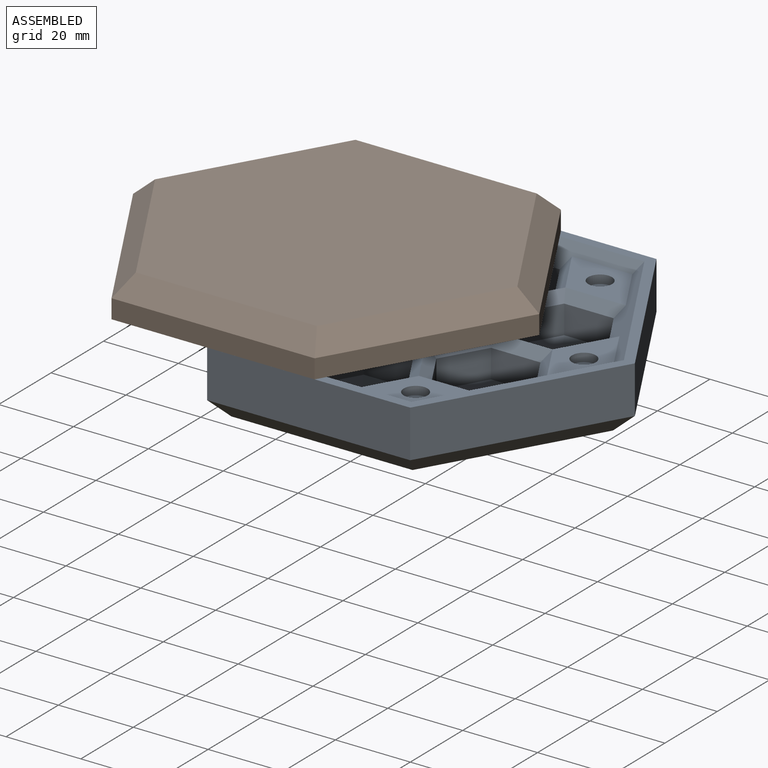
[diagram: assembled view]
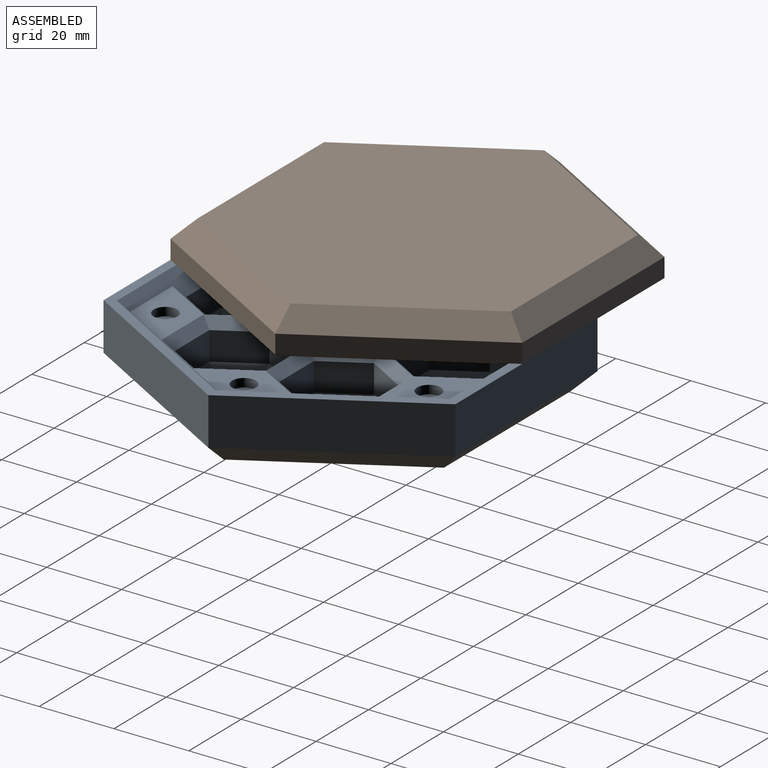
[diagram: assembled view, second angle]
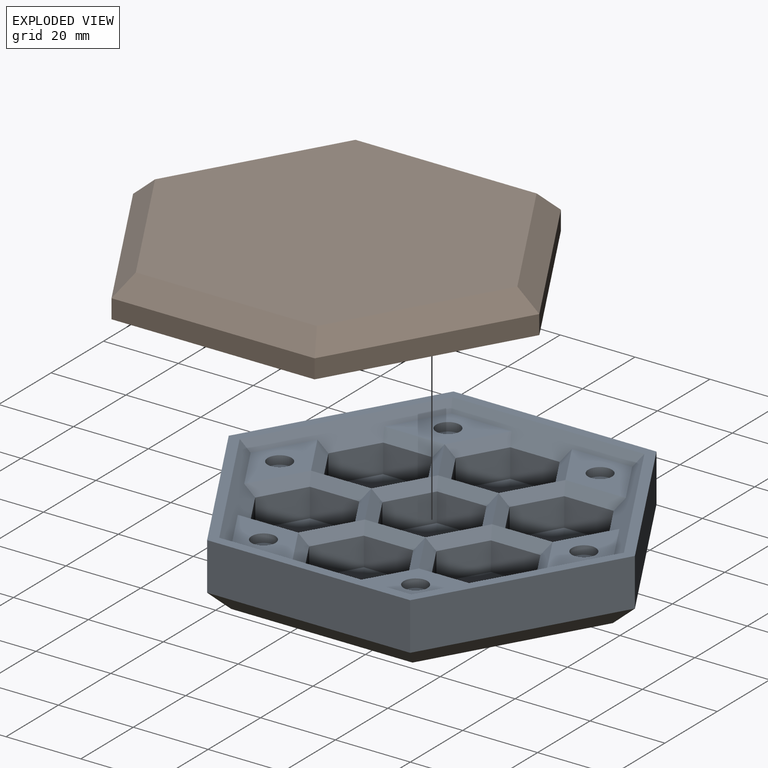
[diagram: exploded view]
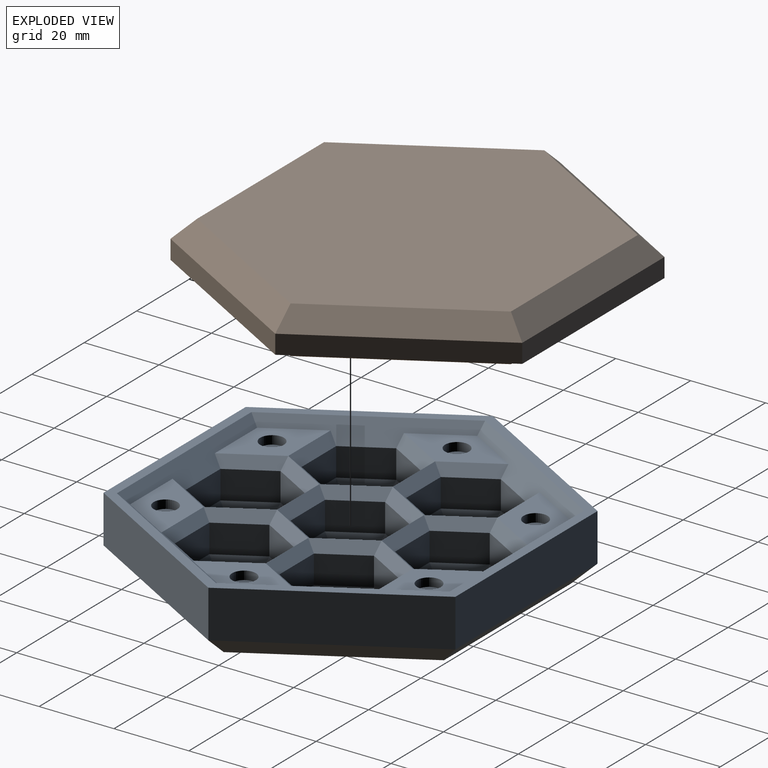
[diagram: exploded view, second angle]
ASSEMBLY  parts=2 mates=2
PART A: 165 faces, bbox 108.5x94x17.8 mm
  f0: plane 27.94x16.13mm, normal (0,0,1), area 193.7mm2, adj f94,f100,f101,f104,f115
  f1: plane 24.2x13.97mm, normal (0,0,1), area 193.7mm2, adj f83,f92,f93,f100,f113
  f2: plane 24.2x13.97mm, normal (0,0,1), area 193.7mm2, adj f81,f82,f91,f92,f111
  f3: plane 27.94x16.13mm, normal (0,0,1), area 193.7mm2, adj f80,f90,f91,f99,f109
  f4: plane 24.2x13.97mm, normal (0,0,1), area 193.7mm2, adj f89,f98,f99,f103,f107
  f5: plane 24.2x13.97mm, normal (0,0,1), area 193.7mm2, adj f97,f102,f103,f104,f105
  f6: plane 11.43x7.62mm, normal (-0.87,-0.5,0), area 100.6mm2, adj f7,f11,f76,f152
  f7: plane 13.2x7.62mm, normal (0,-1,0), area 100.6mm2, adj f6,f8,f69,f151
  f8: plane 11.43x7.62mm, normal (0.87,-0.5,0), area 100.6mm2, adj f7,f9,f65,f149
  f9: plane 11.43x7.62mm, normal (0.87,0.5,0), area 100.6mm2, adj f8,f10,f63,f147
  f10: plane 13.2x7.62mm, normal (0,1,0), area 100.6mm2, adj f9,f11,f64,f148
  f11: plane 11.43x7.62mm, normal (-0.87,0.5,0), area 100.6mm2, adj f6,f10,f68,f150
  f12: plane 20.53x17.78mm, normal (0,0,1), area 273.8mm2, adj f147,f148,f149,f150,f151,f152
  f13: plane 13.2x7.62mm, normal (0,1,0), area 100.6mm2, adj f14,f18,f95,f139
  f14: plane 11.43x7.62mm, normal (-0.87,0.5,0), area 100.6mm2, adj f13,f15,f101,f137
  f15: plane 11.43x7.62mm, normal (-0.87,-0.5,0), area 100.6mm2, adj f14,f16,f104,f135
  f16: plane 13.2x7.62mm, normal (0,-1,0), area 100.6mm2, adj f15,f17,f102,f136
  f17: plane 11.43x7.62mm, normal (0.87,-0.5,0), area 100.6mm2, adj f16,f18,f96,f138
  f18: plane 11.43x7.62mm, normal (0.87,0.5,0), area 100.6mm2, adj f13,f17,f86,f140
  f19: plane 20.53x17.78mm, normal (0,0,1), area 273.8mm2, adj f135,f136,f137,f138,f139,f140
  f20: plane 11.43x7.62mm, normal (0.87,0.5,0), area 100.6mm2, adj f21,f25,f84,f133
  f21: plane 13.2x7.62mm, normal (0,1,0), area 100.6mm2, adj f20,f22,f93,f131
  f22: plane 11.43x7.62mm, normal (-0.87,0.5,0), area 100.6mm2, adj f21,f23,f100,f129
  f23: plane 11.43x7.62mm, normal (-0.87,-0.5,0), area 100.6mm2, adj f22,f24,f94,f130
  f24: plane 13.2x7.62mm, normal (0,-1,0), area 100.6mm2, adj f23,f25,f85,f132
  f25: plane 11.43x7.62mm, normal (0.87,-0.5,0), area 100.6mm2, adj f20,f24,f75,f134
  f26: plane 20.53x17.78mm, normal (0,0,1), area 273.8mm2, adj f129,f130,f131,f132,f133,f134
  f27: plane 13.2x7.62mm, normal (0,-1,0), area 100.6mm2, adj f28,f32,f71,f163
  f28: plane 11.43x7.62mm, normal (0.87,-0.5,0), area 100.6mm2, adj f27,f29,f80,f161
  f29: plane 11.43x7.62mm, normal (0.87,0.5,0), area 100.6mm2, adj f28,f30,f91,f159
  f30: plane 13.2x7.62mm, normal (0,1,0), area 100.6mm2, adj f29,f31,f81,f160
  f31: plane 11.43x7.62mm, normal (-0.87,0.5,0), area 100.6mm2, adj f30,f32,f72,f162
  f32: plane 11.43x7.62mm, normal (-0.87,-0.5,0), area 100.6mm2, adj f27,f31,f66,f164
  f33: plane 20.53x17.78mm, normal (0,0,1), area 273.8mm2, adj f159,f160,f161,f162,f163,f164
  f34: plane 11.43x7.62mm, normal (0.87,-0.5,0), area 100.6mm2, adj f35,f39,f73,f127
  f35: plane 11.43x7.62mm, normal (0.87,0.5,0), area 100.6mm2, adj f34,f36,f82,f125
  f36: plane 13.2x7.62mm, normal (0,1,0), area 100.6mm2, adj f35,f37,f92,f123
  f37: plane 11.43x7.62mm, normal (-0.87,0.5,0), area 100.6mm2, adj f36,f38,f83,f124
  f38: plane 11.43x7.62mm, normal (-0.87,-0.5,0), area 100.6mm2, adj f37,f39,f74,f126
  f39: plane 13.2x7.62mm, normal (0,-1,0), area 100.6mm2, adj f34,f38,f67,f128
  f40: plane 20.53x17.78mm, normal (0,0,1), area 273.8mm2, adj f123,f124,f125,f126,f127,f128
  f41: plane 11.43x7.62mm, normal (0.87,0.5,0), area 100.6mm2, adj f42,f46,f88,f146
  f42: plane 13.2x7.62mm, normal (0,1,0), area 100.6mm2, adj f41,f43,f77,f145
  f43: plane 11.43x7.62mm, normal (-0.87,0.5,0), area 100.6mm2, adj f42,f44,f87,f143
  f44: plane 11.43x7.62mm, normal (-0.87,-0.5,0), area 100.6mm2, adj f43,f45,f97,f141
  f45: plane 13.2x7.62mm, normal (0,-1,0), area 100.6mm2, adj f44,f46,f103,f142
  f46: plane 11.43x7.62mm, normal (0.87,-0.5,0), area 100.6mm2, adj f41,f45,f98,f144
  f47: plane 20.53x17.78mm, normal (0,0,1), area 273.8mm2, adj f141,f142,f143,f144,f145,f146
  f48: plane 11.43x7.62mm, normal (-0.87,-0.5,0), area 100.6mm2, adj f49,f53,f78,f157
  f49: plane 13.2x7.62mm, normal (0,-1,0), area 100.6mm2, adj f48,f50,f89,f155
  f50: plane 11.43x7.62mm, normal (0.87,-0.5,0), area 100.6mm2, adj f49,f51,f99,f153
  f51: plane 11.43x7.62mm, normal (0.87,0.5,0), area 100.6mm2, adj f50,f52,f90,f154
  f52: plane 13.2x7.62mm, normal (0,1,0), area 100.6mm2, adj f51,f53,f79,f156
  f53: plane 11.43x7.62mm, normal (-0.87,0.5,0), area 100.6mm2, adj f48,f52,f70,f158
  f54: plane 20.53x17.78mm, normal (0,0,1), area 273.8mm2, adj f153,f154,f155,f156,f157,f158
  f55: plane 108.52x93.98mm, normal (0,0,1), area 804.6mm2, adj f57,f58,f59,f60,f61,f62,f91,f92
  f56: plane 96.79x83.82mm, normal (0,0,-1), area 6084.5mm2, adj f117,f118,f119,f120,f121,f122
  f57: plane 46.99x27.13mm, normal (0.87,-0.5,0), area 689.1mm2, adj f55,f58,f62,f120
  f58: plane 54.26x12.7mm, normal (0,-1,0), area 689.1mm2, adj f55,f57,f59,f118
  f59: plane 46.99x27.13mm, normal (-0.87,-0.5,0), area 689.1mm2, adj f55,f58,f60,f117
  f60: plane 46.99x27.13mm, normal (-0.87,0.5,0), area 689.1mm2, adj f55,f59,f61,f119
  f61: plane 54.26x12.7mm, normal (0,1,0), area 689.1mm2, adj f55,f60,f62,f121
  f62: plane 46.99x27.13mm, normal (0.87,0.5,0), area 689.1mm2, adj f55,f57,f61,f122
  f63: plane 13.97x9.53mm, normal (0.61,0.35,0.71), area 52.7mm2, adj f9,f64,f65,f66
  f64: plane 16.13x2.54mm, normal (0,0.71,0.71), area 52.7mm2, adj f10,f63,f67,f68
  f65: plane 13.97x9.53mm, normal (0.61,-0.35,0.71), area 52.7mm2, adj f8,f63,f69,f70
  f66: plane 13.97x9.53mm, normal (-0.61,-0.35,0.71), area 52.7mm2, adj f32,f63,f71,f72
  f67: plane 16.13x2.54mm, normal (0,-0.71,0.71), area 52.7mm2, adj f39,f64,f73,f74
  f68: plane 13.97x9.53mm, normal (-0.61,0.35,0.71), area 52.7mm2, adj f11,f64,f75,f76
  f69: plane 16.13x2.54mm, normal (0,-0.71,0.71), area 52.7mm2, adj f7,f65,f76,f77
  f70: plane 13.97x9.53mm, normal (-0.61,0.35,0.71), area 52.7mm2, adj f53,f65,f78,f79
  f71: plane 16.13x2.54mm, normal (0,-0.71,0.71), area 52.7mm2, adj f27,f66,f79,f80
  f72: plane 13.97x9.53mm, normal (-0.61,0.35,0.71), area 52.7mm2, adj f31,f66,f73,f81
  f73: plane 13.97x9.53mm, normal (0.61,-0.35,0.71), area 52.7mm2, adj f34,f67,f72,f82
  f74: plane 13.97x9.53mm, normal (-0.61,-0.35,0.71), area 52.7mm2, adj f38,f67,f83,f84
  f75: plane 13.97x9.53mm, normal (0.61,-0.35,0.71), area 52.7mm2, adj f25,f68,f84,f85
  f76: plane 13.97x9.53mm, normal (-0.61,-0.35,0.71), area 52.7mm2, adj f6,f68,f69,f86
  f77: plane 16.13x2.54mm, normal (0,0.71,0.71), area 52.7mm2, adj f42,f69,f87,f88
  f78: plane 13.97x9.53mm, normal (-0.61,-0.35,0.71), area 52.7mm2, adj f48,f70,f88,f89
  f79: plane 16.13x2.54mm, normal (0,0.71,0.71), area 52.7mm2, adj f52,f70,f71,f90
  f80: plane 13.97x9.53mm, normal (0.61,-0.35,0.71), area 52.7mm2, adj f3,f28,f71,f91
  f81: plane 16.13x2.54mm, normal (0,0.71,0.71), area 52.7mm2, adj f2,f30,f72,f91
  f82: plane 13.97x9.53mm, normal (0.61,0.35,0.71), area 52.7mm2, adj f2,f35,f73,f92
  f83: plane 13.97x9.53mm, normal (-0.61,0.35,0.71), area 52.7mm2, adj f1,f37,f74,f92
  f84: plane 13.97x9.53mm, normal (0.61,0.35,0.71), area 52.7mm2, adj f20,f74,f75,f93
  f85: plane 16.13x2.54mm, normal (0,-0.71,0.71), area 52.7mm2, adj f24,f75,f94,f95
  f86: plane 13.97x9.53mm, normal (0.61,0.35,0.71), area 52.7mm2, adj f18,f76,f95,f96
  f87: plane 13.97x9.53mm, normal (-0.61,0.35,0.71), area 52.7mm2, adj f43,f77,f96,f97
  f88: plane 13.97x9.53mm, normal (0.61,0.35,0.71), area 52.7mm2, adj f41,f77,f78,f98
  f89: plane 16.13x2.54mm, normal (0,-0.71,0.71), area 52.7mm2, adj f4,f49,f78,f99
  f90: plane 13.97x9.53mm, normal (0.61,0.35,0.71), area 52.7mm2, adj f3,f51,f79,f99
  f91: plane 44.45x27.13mm, normal (0.61,0.35,0.71), area 231.8mm2, adj f2,f3,f29,f55,f80,f81,f92,f99
  f92: plane 51.33x5.08mm, normal (0,0.71,0.71), area 231.8mm2, adj f1,f2,f36,f55,f82,f83,f91,f100
  f93: plane 16.13x2.54mm, normal (0,0.71,0.71), area 52.7mm2, adj f1,f21,f84,f100
  f94: plane 13.97x9.53mm, normal (-0.61,-0.35,0.71), area 52.7mm2, adj f0,f23,f85,f100
  f95: plane 16.13x2.54mm, normal (0,0.71,0.71), area 52.7mm2, adj f13,f85,f86,f101
  f96: plane 13.97x9.53mm, normal (0.61,-0.35,0.71), area 52.7mm2, adj f17,f86,f87,f102
  f97: plane 13.97x9.53mm, normal (-0.61,-0.35,0.71), area 52.7mm2, adj f5,f44,f87,f103
  f98: plane 13.97x9.53mm, normal (0.61,-0.35,0.71), area 52.7mm2, adj f4,f46,f88,f103
  f99: plane 44.45x27.13mm, normal (0.61,-0.35,0.71), area 231.8mm2, adj f3,f4,f50,f55,f89,f90,f91,f103
  f100: plane 44.45x27.13mm, normal (-0.61,0.35,0.71), area 231.8mm2, adj f0,f1,f22,f55,f92,f93,f94,f104
  f101: plane 13.97x9.53mm, normal (-0.61,0.35,0.71), area 52.7mm2, adj f0,f14,f95,f104
  f102: plane 16.13x2.54mm, normal (0,-0.71,0.71), area 52.7mm2, adj f5,f16,f96,f104
  f103: plane 51.33x5.08mm, normal (0,-0.71,0.71), area 231.8mm2, adj f4,f5,f45,f55,f97,f98,f99,f104
  f104: plane 44.45x27.13mm, normal (-0.61,-0.35,0.71), area 231.8mm2, adj f0,f5,f15,f55,f100,f101,f102,f103
  f105: cylinder r=3.17mm len=6.35mm, axis (0,0,1), area 45.6mm2, adj f5,f106
  f106: plane 6.35x6.35mm, normal (0,0,1), area 31.7mm2, adj f105
  f107: cylinder r=3.17mm len=6.35mm, axis (0,0,1), area 45.6mm2, adj f4,f108
  f108: plane 6.35x6.35mm, normal (0,0,1), area 31.7mm2, adj f107
  f109: cylinder r=3.17mm len=6.35mm, axis (0,0,1), area 45.6mm2, adj f3,f110
  f110: plane 6.35x6.35mm, normal (0,0,1), area 31.7mm2, adj f109
  f111: cylinder r=3.17mm len=6.35mm, axis (0,0,1), area 45.6mm2, adj f2,f112
  f112: plane 6.35x6.35mm, normal (0,0,1), area 31.7mm2, adj f111
  f113: cylinder r=3.17mm len=6.35mm, axis (0,0,1), area 45.6mm2, adj f1,f114
  f114: plane 6.35x6.35mm, normal (0,0,1), area 31.7mm2, adj f113
  f115: cylinder r=3.17mm len=6.35mm, axis (0,0,1), area 45.6mm2, adj f0,f116
  f116: plane 6.35x6.35mm, normal (0,0,1), area 31.7mm2, adj f115
  f117: plane 46.99x30.06mm, normal (-0.61,-0.35,-0.71), area 368.7mm2, adj f56,f59,f118,f119
  f118: plane 54.26x5.08mm, normal (0,-0.71,-0.71), area 368.7mm2, adj f56,f58,f117,f120
  f119: plane 46.99x30.06mm, normal (-0.61,0.35,-0.71), area 368.7mm2, adj f56,f60,f117,f121
  f120: plane 46.99x30.06mm, normal (0.61,-0.35,-0.71), area 368.7mm2, adj f56,f57,f118,f122
  f121: plane 54.26x5.08mm, normal (0,0.71,-0.71), area 368.7mm2, adj f56,f61,f119,f122
  f122: plane 46.99x30.06mm, normal (0.61,0.35,-0.71), area 368.7mm2, adj f56,f62,f120,f121
  f123: plane 13.2x2.54mm, normal (0,0.71,0.71), area 42.1mm2, adj f36,f40,f124,f125
  f124: plane 11.43x8.07mm, normal (-0.61,0.35,0.71), area 42.1mm2, adj f37,f40,f123,f126
  f125: plane 11.43x8.07mm, normal (0.61,0.35,0.71), area 42.1mm2, adj f35,f40,f123,f127
  f126: plane 11.43x8.07mm, normal (-0.61,-0.35,0.71), area 42.1mm2, adj f38,f40,f124,f128
  f127: plane 11.43x8.07mm, normal (0.61,-0.35,0.71), area 42.1mm2, adj f34,f40,f125,f128
  f128: plane 13.2x2.54mm, normal (0,-0.71,0.71), area 42.1mm2, adj f39,f40,f126,f127
  f129: plane 11.43x8.07mm, normal (-0.61,0.35,0.71), area 42.1mm2, adj f22,f26,f130,f131
  f130: plane 11.43x8.07mm, normal (-0.61,-0.35,0.71), area 42.1mm2, adj f23,f26,f129,f132
  f131: plane 13.2x2.54mm, normal (0,0.71,0.71), area 42.1mm2, adj f21,f26,f129,f133
  f132: plane 13.2x2.54mm, normal (0,-0.71,0.71), area 42.1mm2, adj f24,f26,f130,f134
  f133: plane 11.43x8.07mm, normal (0.61,0.35,0.71), area 42.1mm2, adj f20,f26,f131,f134
  f134: plane 11.43x8.07mm, normal (0.61,-0.35,0.71), area 42.1mm2, adj f25,f26,f132,f133
  f135: plane 11.43x8.07mm, normal (-0.61,-0.35,0.71), area 42.1mm2, adj f15,f19,f136,f137
  f136: plane 13.2x2.54mm, normal (0,-0.71,0.71), area 42.1mm2, adj f16,f19,f135,f138
  f137: plane 11.43x8.07mm, normal (-0.61,0.35,0.71), area 42.1mm2, adj f14,f19,f135,f139
  f138: plane 11.43x8.07mm, normal (0.61,-0.35,0.71), area 42.1mm2, adj f17,f19,f136,f140
  f139: plane 13.2x2.54mm, normal (0,0.71,0.71), area 42.1mm2, adj f13,f19,f137,f140
  f140: plane 11.43x8.07mm, normal (0.61,0.35,0.71), area 42.1mm2, adj f18,f19,f138,f139
  f141: plane 11.43x8.07mm, normal (-0.61,-0.35,0.71), area 42.1mm2, adj f44,f47,f142,f143
  f142: plane 13.2x2.54mm, normal (0,-0.71,0.71), area 42.1mm2, adj f45,f47,f141,f144
  f143: plane 11.43x8.07mm, normal (-0.61,0.35,0.71), area 42.1mm2, adj f43,f47,f141,f145
  f144: plane 11.43x8.07mm, normal (0.61,-0.35,0.71), area 42.1mm2, adj f46,f47,f142,f146
  f145: plane 13.2x2.54mm, normal (0,0.71,0.71), area 42.1mm2, adj f42,f47,f143,f146
  f146: plane 11.43x8.07mm, normal (0.61,0.35,0.71), area 42.1mm2, adj f41,f47,f144,f145
  f147: plane 11.43x8.07mm, normal (0.61,0.35,0.71), area 42.1mm2, adj f9,f12,f148,f149
  f148: plane 13.2x2.54mm, normal (0,0.71,0.71), area 42.1mm2, adj f10,f12,f147,f150
  f149: plane 11.43x8.07mm, normal (0.61,-0.35,0.71), area 42.1mm2, adj f8,f12,f147,f151
  f150: plane 11.43x8.07mm, normal (-0.61,0.35,0.71), area 42.1mm2, adj f11,f12,f148,f152
  f151: plane 13.2x2.54mm, normal (0,-0.71,0.71), area 42.1mm2, adj f7,f12,f149,f152
  f152: plane 11.43x8.07mm, normal (-0.61,-0.35,0.71), area 42.1mm2, adj f6,f12,f150,f151
  f153: plane 11.43x8.07mm, normal (0.61,-0.35,0.71), area 42.1mm2, adj f50,f54,f154,f155
  f154: plane 11.43x8.07mm, normal (0.61,0.35,0.71), area 42.1mm2, adj f51,f54,f153,f156
  f155: plane 13.2x2.54mm, normal (0,-0.71,0.71), area 42.1mm2, adj f49,f54,f153,f157
  f156: plane 13.2x2.54mm, normal (0,0.71,0.71), area 42.1mm2, adj f52,f54,f154,f158
  f157: plane 11.43x8.07mm, normal (-0.61,-0.35,0.71), area 42.1mm2, adj f48,f54,f155,f158
  f158: plane 11.43x8.07mm, normal (-0.61,0.35,0.71), area 42.1mm2, adj f53,f54,f156,f157
  f159: plane 11.43x8.07mm, normal (0.61,0.35,0.71), area 42.1mm2, adj f29,f33,f160,f161
  f160: plane 13.2x2.54mm, normal (0,0.71,0.71), area 42.1mm2, adj f30,f33,f159,f162
  f161: plane 11.43x8.07mm, normal (0.61,-0.35,0.71), area 42.1mm2, adj f28,f33,f159,f163
  f162: plane 11.43x8.07mm, normal (-0.61,0.35,0.71), area 42.1mm2, adj f31,f33,f160,f164
  f163: plane 13.2x2.54mm, normal (0,-0.71,0.71), area 42.1mm2, adj f27,f33,f161,f164
  f164: plane 11.43x8.07mm, normal (-0.61,-0.35,0.71), area 42.1mm2, adj f32,f33,f162,f163
PART B: 171 faces, bbox 108.5x94x12.7 mm
  f0: plane 27.94x16.13mm, normal (0,0,-1), area 193.7mm2, adj f17,f19,f79,f120,f127
  f1: plane 24.2x13.97mm, normal (0,0,-1), area 193.7mm2, adj f14,f15,f75,f99,f104
  f2: plane 24.2x13.97mm, normal (0,0,-1), area 193.7mm2, adj f15,f17,f77,f116,f126
  f3: plane 24.2x13.97mm, normal (0,0,-1), area 193.7mm2, adj f18,f19,f81,f103,f109
  f4: plane 27.94x16.13mm, normal (0,0,-1), area 193.7mm2, adj f14,f16,f85,f88,f90
  f5: plane 46.99x27.13mm, normal (-0.87,-0.5,0), area 275.6mm2, adj f6,f10,f12,f25
  f6: plane 54.26x5.08mm, normal (0,-1,0), area 275.6mm2, adj f5,f7,f12,f24
  f7: plane 46.99x27.13mm, normal (0.87,-0.5,0), area 275.6mm2, adj f6,f8,f12,f22
  f8: plane 46.99x27.13mm, normal (0.87,0.5,0), area 275.6mm2, adj f7,f9,f12,f20
  f9: plane 54.26x5.08mm, normal (0,1,0), area 275.6mm2, adj f8,f10,f12,f21
  f10: plane 46.99x27.13mm, normal (-0.87,0.5,0), area 275.6mm2, adj f5,f9,f12,f23
  f11: plane 96.79x83.82mm, normal (0,0,1), area 6084.5mm2, adj f20,f21,f22,f23,f24,f25
  f12: plane 108.52x93.98mm, normal (0,0,-1), area 804.6mm2, adj f5,f6,f7,f8,f9,f10,f14,f15
  f13: plane 24.2x13.97mm, normal (0,0,-1), area 193.7mm2, adj f16,f18,f83,f89,f93
  f14: plane 44.45x27.13mm, normal (-0.61,0.35,-0.71), area 179.1mm2, adj f1,f4,f12,f15,f16,f94
  f15: plane 51.33x2.54mm, normal (0,0.71,-0.71), area 179.1mm2, adj f1,f2,f12,f14,f17,f110
  f16: plane 44.45x27.13mm, normal (-0.61,-0.35,-0.71), area 179.1mm2, adj f4,f12,f13,f14,f18,f87
  f17: plane 44.45x27.13mm, normal (0.61,0.35,-0.71), area 179.1mm2, adj f0,f2,f12,f15,f19,f128
  f18: plane 51.33x2.54mm, normal (0,-0.71,-0.71), area 179.1mm2, adj f3,f12,f13,f16,f19,f98
  f19: plane 44.45x27.13mm, normal (0.61,-0.35,-0.71), area 179.1mm2, adj f0,f3,f12,f17,f18,f115
  f20: plane 46.99x30.06mm, normal (0.61,0.35,0.71), area 368.7mm2, adj f8,f11,f21,f22
  f21: plane 54.26x5.08mm, normal (0,0.71,0.71), area 368.7mm2, adj f9,f11,f20,f23
  f22: plane 46.99x30.06mm, normal (0.61,-0.35,0.71), area 368.7mm2, adj f7,f11,f20,f24
  f23: plane 46.99x30.06mm, normal (-0.61,0.35,0.71), area 368.7mm2, adj f10,f11,f21,f25
  f24: plane 54.26x5.08mm, normal (0,-0.71,0.71), area 368.7mm2, adj f6,f11,f22,f25
  f25: plane 46.99x30.06mm, normal (-0.61,-0.35,0.71), area 368.7mm2, adj f5,f11,f23,f24
  f26: plane 11.43x6.6mm, normal (-0.87,0.5,0), area 67mm2, adj f27,f31,f113,f158
  f27: plane 13.2x5.08mm, normal (0,1,0), area 67mm2, adj f26,f28,f107,f157
  f28: plane 11.43x6.6mm, normal (0.87,0.5,0), area 67mm2, adj f27,f29,f101,f155
  f29: plane 11.43x6.6mm, normal (0.87,-0.5,0), area 67mm2, adj f28,f30,f106,f153
  f30: plane 13.2x5.08mm, normal (0,-1,0), area 67mm2, adj f29,f31,f112,f154
  f31: plane 11.43x6.6mm, normal (-0.87,-0.5,0), area 67mm2, adj f26,f30,f118,f156
  f32: plane 20.53x17.78mm, normal (0,0,-1), area 273.8mm2, adj f153,f154,f155,f156,f157,f158
  f33: plane 13.2x5.08mm, normal (0,-1,0), area 67mm2, adj f34,f38,f123,f137
  f34: plane 11.43x6.6mm, normal (-0.87,-0.5,0), area 67mm2, adj f33,f35,f120,f135
  f35: plane 11.43x6.6mm, normal (-0.87,0.5,0), area 67mm2, adj f34,f36,f115,f136
  f36: plane 13.2x5.08mm, normal (0,1,0), area 67mm2, adj f35,f37,f109,f138
  f37: plane 11.43x6.6mm, normal (0.87,0.5,0), area 67mm2, adj f36,f38,f114,f140
  f38: plane 11.43x6.6mm, normal (0.87,-0.5,0), area 67mm2, adj f33,f37,f119,f139
  f39: plane 20.53x17.78mm, normal (0,0,-1), area 273.8mm2, adj f135,f136,f137,f138,f139,f140
  f40: plane 11.43x6.6mm, normal (0.87,-0.5,0), area 67mm2, adj f41,f45,f124,f143
  f41: plane 13.2x5.08mm, normal (0,-1,0), area 67mm2, adj f40,f42,f126,f141
  f42: plane 11.43x6.6mm, normal (-0.87,-0.5,0), area 67mm2, adj f41,f43,f128,f142
  f43: plane 11.43x6.6mm, normal (-0.87,0.5,0), area 67mm2, adj f42,f44,f127,f144
  f44: plane 13.2x5.08mm, normal (0,1,0), area 67mm2, adj f43,f45,f125,f146
  f45: plane 11.43x6.6mm, normal (0.87,0.5,0), area 67mm2, adj f40,f44,f122,f145
  f46: plane 20.53x17.78mm, normal (0,0,-1), area 273.8mm2, adj f141,f142,f143,f144,f145,f146
  f47: plane 13.2x5.08mm, normal (0,1,0), area 67mm2, adj f48,f52,f95,f161
  f48: plane 11.43x6.6mm, normal (0.87,0.5,0), area 67mm2, adj f47,f49,f90,f159
  f49: plane 11.43x6.6mm, normal (0.87,-0.5,0), area 67mm2, adj f48,f50,f94,f160
  f50: plane 13.2x5.08mm, normal (0,-1,0), area 67mm2, adj f49,f51,f99,f162
  f51: plane 11.43x6.6mm, normal (-0.87,-0.5,0), area 67mm2, adj f50,f52,f105,f164
  f52: plane 11.43x6.6mm, normal (-0.87,0.5,0), area 67mm2, adj f47,f51,f100,f163
  f53: plane 20.53x17.78mm, normal (0,0,-1), area 273.8mm2, adj f159,f160,f161,f162,f163,f164
  f54: plane 11.43x6.6mm, normal (0.87,0.5,0), area 67mm2, adj f55,f59,f111,f149
  f55: plane 11.43x6.6mm, normal (0.87,-0.5,0), area 67mm2, adj f54,f56,f104,f147
  f56: plane 13.2x5.08mm, normal (0,-1,0), area 67mm2, adj f55,f57,f110,f148
  f57: plane 11.43x6.6mm, normal (-0.87,-0.5,0), area 67mm2, adj f56,f58,f116,f150
  f58: plane 11.43x6.6mm, normal (-0.87,0.5,0), area 67mm2, adj f57,f59,f121,f152
  f59: plane 13.2x5.08mm, normal (0,1,0), area 67mm2, adj f54,f58,f117,f151
  f60: plane 20.53x17.78mm, normal (0,0,-1), area 273.8mm2, adj f147,f148,f149,f150,f151,f152
  f61: plane 11.43x6.6mm, normal (0.87,-0.5,0), area 67mm2, adj f62,f66,f97,f134
  f62: plane 13.2x5.08mm, normal (0,-1,0), area 67mm2, adj f61,f63,f102,f133
  f63: plane 11.43x6.6mm, normal (-0.87,-0.5,0), area 67mm2, adj f62,f64,f108,f131
  f64: plane 11.43x6.6mm, normal (-0.87,0.5,0), area 67mm2, adj f63,f65,f103,f129
  f65: plane 13.2x5.08mm, normal (0,1,0), area 67mm2, adj f64,f66,f98,f130
  f66: plane 11.43x6.6mm, normal (0.87,0.5,0), area 67mm2, adj f61,f65,f93,f132
  f67: plane 20.53x17.78mm, normal (0,0,-1), area 273.8mm2, adj f129,f130,f131,f132,f133,f134
  f68: plane 11.43x6.6mm, normal (-0.87,0.5,0), area 67mm2, adj f69,f73,f92,f167
  f69: plane 13.2x5.08mm, normal (0,1,0), area 67mm2, adj f68,f70,f89,f165
  f70: plane 11.43x6.6mm, normal (0.87,0.5,0), area 67mm2, adj f69,f71,f87,f166
  f71: plane 11.43x6.6mm, normal (0.87,-0.5,0), area 67mm2, adj f70,f72,f88,f168
  f72: plane 13.2x5.08mm, normal (0,-1,0), area 67mm2, adj f71,f73,f91,f170
  f73: plane 11.43x6.6mm, normal (-0.87,-0.5,0), area 67mm2, adj f68,f72,f96,f169
  f74: plane 20.53x17.78mm, normal (0,0,-1), area 273.8mm2, adj f165,f166,f167,f168,f169,f170
  f75: cylinder r=3.17mm len=6.35mm, axis (0,0,-1), area 45.6mm2, adj f1,f76
  f76: plane 6.35x6.35mm, normal (0,0,-1), area 31.7mm2, adj f75
  f77: cylinder r=3.17mm len=6.35mm, axis (0,0,-1), area 45.6mm2, adj f2,f78
  f78: plane 6.35x6.35mm, normal (0,0,-1), area 31.7mm2, adj f77
  f79: cylinder r=3.17mm len=6.35mm, axis (0,0,-1), area 45.6mm2, adj f0,f80
  f80: plane 6.35x6.35mm, normal (0,0,-1), area 31.7mm2, adj f79
  f81: cylinder r=3.17mm len=6.35mm, axis (0,0,-1), area 45.6mm2, adj f3,f82
  f82: plane 6.35x6.35mm, normal (0,0,-1), area 31.7mm2, adj f81
  f83: cylinder r=3.17mm len=6.35mm, axis (0,0,-1), area 45.6mm2, adj f13,f84
  f84: plane 6.35x6.35mm, normal (0,0,-1), area 31.7mm2, adj f83
  f85: cylinder r=3.17mm len=6.35mm, axis (0,0,-1), area 45.6mm2, adj f4,f86
  f86: plane 6.35x6.35mm, normal (0,0,-1), area 31.7mm2, adj f85
  f87: plane 13.97x9.53mm, normal (0.61,0.35,-0.71), area 52.7mm2, adj f16,f70,f88,f89
  f88: plane 13.97x9.53mm, normal (0.61,-0.35,-0.71), area 52.7mm2, adj f4,f71,f87,f91
  f89: plane 16.13x2.54mm, normal (0,0.71,-0.71), area 52.7mm2, adj f13,f69,f87,f92
  f90: plane 13.97x9.53mm, normal (0.61,0.35,-0.71), area 52.7mm2, adj f4,f48,f94,f95
  f91: plane 16.13x2.54mm, normal (0,-0.71,-0.71), area 52.7mm2, adj f72,f88,f95,f96
  f92: plane 13.97x9.53mm, normal (-0.61,0.35,-0.71), area 52.7mm2, adj f68,f89,f96,f97
  f93: plane 13.97x9.53mm, normal (0.61,0.35,-0.71), area 52.7mm2, adj f13,f66,f97,f98
  f94: plane 13.97x9.53mm, normal (0.61,-0.35,-0.71), area 52.7mm2, adj f14,f49,f90,f99
  f95: plane 16.13x2.54mm, normal (0,0.71,-0.71), area 52.7mm2, adj f47,f90,f91,f100
  f96: plane 13.97x9.53mm, normal (-0.61,-0.35,-0.71), area 52.7mm2, adj f73,f91,f92,f101
  f97: plane 13.97x9.53mm, normal (0.61,-0.35,-0.71), area 52.7mm2, adj f61,f92,f93,f102
  f98: plane 16.13x2.54mm, normal (0,0.71,-0.71), area 52.7mm2, adj f18,f65,f93,f103
  f99: plane 16.13x2.54mm, normal (0,-0.71,-0.71), area 52.7mm2, adj f1,f50,f94,f105
  f100: plane 13.97x9.53mm, normal (-0.61,0.35,-0.71), area 52.7mm2, adj f52,f95,f105,f106
  f101: plane 13.97x9.53mm, normal (0.61,0.35,-0.71), area 52.7mm2, adj f28,f96,f106,f107
  f102: plane 16.13x2.54mm, normal (0,-0.71,-0.71), area 52.7mm2, adj f62,f97,f107,f108
  f103: plane 13.97x9.53mm, normal (-0.61,0.35,-0.71), area 52.7mm2, adj f3,f64,f98,f108
  f104: plane 13.97x9.53mm, normal (0.61,-0.35,-0.71), area 52.7mm2, adj f1,f55,f110,f111
  f105: plane 13.97x9.53mm, normal (-0.61,-0.35,-0.71), area 52.7mm2, adj f51,f99,f100,f111
  f106: plane 13.97x9.53mm, normal (0.61,-0.35,-0.71), area 52.7mm2, adj f29,f100,f101,f112
  f107: plane 16.13x2.54mm, normal (0,0.71,-0.71), area 52.7mm2, adj f27,f101,f102,f113
  f108: plane 13.97x9.53mm, normal (-0.61,-0.35,-0.71), area 52.7mm2, adj f63,f102,f103,f114
  f109: plane 16.13x2.54mm, normal (0,0.71,-0.71), area 52.7mm2, adj f3,f36,f114,f115
  f110: plane 16.13x2.54mm, normal (0,-0.71,-0.71), area 52.7mm2, adj f15,f56,f104,f116
  f111: plane 13.97x9.53mm, normal (0.61,0.35,-0.71), area 52.7mm2, adj f54,f104,f105,f117
  f112: plane 16.13x2.54mm, normal (0,-0.71,-0.71), area 52.7mm2, adj f30,f106,f117,f118
  f113: plane 13.97x9.53mm, normal (-0.61,0.35,-0.71), area 52.7mm2, adj f26,f107,f118,f119
  f114: plane 13.97x9.53mm, normal (0.61,0.35,-0.71), area 52.7mm2, adj f37,f108,f109,f119
  f115: plane 13.97x9.53mm, normal (-0.61,0.35,-0.71), area 52.7mm2, adj f19,f35,f109,f120
  f116: plane 13.97x9.53mm, normal (-0.61,-0.35,-0.71), area 52.7mm2, adj f2,f57,f110,f121
  f117: plane 16.13x2.54mm, normal (0,0.71,-0.71), area 52.7mm2, adj f59,f111,f112,f121
  f118: plane 13.97x9.53mm, normal (-0.61,-0.35,-0.71), area 52.7mm2, adj f31,f112,f113,f122
  f119: plane 13.97x9.53mm, normal (0.61,-0.35,-0.71), area 52.7mm2, adj f38,f113,f114,f123
  f120: plane 13.97x9.53mm, normal (-0.61,-0.35,-0.71), area 52.7mm2, adj f0,f34,f115,f123
  f121: plane 13.97x9.53mm, normal (-0.61,0.35,-0.71), area 52.7mm2, adj f58,f116,f117,f124
  f122: plane 13.97x9.53mm, normal (0.61,0.35,-0.71), area 52.7mm2, adj f45,f118,f124,f125
  f123: plane 16.13x2.54mm, normal (0,-0.71,-0.71), area 52.7mm2, adj f33,f119,f120,f125
  f124: plane 13.97x9.53mm, normal (0.61,-0.35,-0.71), area 52.7mm2, adj f40,f121,f122,f126
  f125: plane 16.13x2.54mm, normal (0,0.71,-0.71), area 52.7mm2, adj f44,f122,f123,f127
  f126: plane 16.13x2.54mm, normal (0,-0.71,-0.71), area 52.7mm2, adj f2,f41,f124,f128
  f127: plane 13.97x9.53mm, normal (-0.61,0.35,-0.71), area 52.7mm2, adj f0,f43,f125,f128
  f128: plane 13.97x9.53mm, normal (-0.61,-0.35,-0.71), area 52.7mm2, adj f17,f42,f126,f127
  f129: plane 11.43x8.07mm, normal (-0.61,0.35,-0.71), area 42.1mm2, adj f64,f67,f130,f131
  f130: plane 13.2x2.54mm, normal (0,0.71,-0.71), area 42.1mm2, adj f65,f67,f129,f132
  f131: plane 11.43x8.07mm, normal (-0.61,-0.35,-0.71), area 42.1mm2, adj f63,f67,f129,f133
  f132: plane 11.43x8.07mm, normal (0.61,0.35,-0.71), area 42.1mm2, adj f66,f67,f130,f134
  f133: plane 13.2x2.54mm, normal (0,-0.71,-0.71), area 42.1mm2, adj f62,f67,f131,f134
  f134: plane 11.43x8.07mm, normal (0.61,-0.35,-0.71), area 42.1mm2, adj f61,f67,f132,f133
  f135: plane 11.43x8.07mm, normal (-0.61,-0.35,-0.71), area 42.1mm2, adj f34,f39,f136,f137
  f136: plane 11.43x8.07mm, normal (-0.61,0.35,-0.71), area 42.1mm2, adj f35,f39,f135,f138
  f137: plane 13.2x2.54mm, normal (0,-0.71,-0.71), area 42.1mm2, adj f33,f39,f135,f139
  f138: plane 13.2x2.54mm, normal (0,0.71,-0.71), area 42.1mm2, adj f36,f39,f136,f140
  f139: plane 11.43x8.07mm, normal (0.61,-0.35,-0.71), area 42.1mm2, adj f38,f39,f137,f140
  f140: plane 11.43x8.07mm, normal (0.61,0.35,-0.71), area 42.1mm2, adj f37,f39,f138,f139
  f141: plane 13.2x2.54mm, normal (0,-0.71,-0.71), area 42.1mm2, adj f41,f46,f142,f143
  f142: plane 11.43x8.07mm, normal (-0.61,-0.35,-0.71), area 42.1mm2, adj f42,f46,f141,f144
  f143: plane 11.43x8.07mm, normal (0.61,-0.35,-0.71), area 42.1mm2, adj f40,f46,f141,f145
  f144: plane 11.43x8.07mm, normal (-0.61,0.35,-0.71), area 42.1mm2, adj f43,f46,f142,f146
  f145: plane 11.43x8.07mm, normal (0.61,0.35,-0.71), area 42.1mm2, adj f45,f46,f143,f146
  f146: plane 13.2x2.54mm, normal (0,0.71,-0.71), area 42.1mm2, adj f44,f46,f144,f145
  f147: plane 11.43x8.07mm, normal (0.61,-0.35,-0.71), area 42.1mm2, adj f55,f60,f148,f149
  f148: plane 13.2x2.54mm, normal (0,-0.71,-0.71), area 42.1mm2, adj f56,f60,f147,f150
  f149: plane 11.43x8.07mm, normal (0.61,0.35,-0.71), area 42.1mm2, adj f54,f60,f147,f151
  f150: plane 11.43x8.07mm, normal (-0.61,-0.35,-0.71), area 42.1mm2, adj f57,f60,f148,f152
  f151: plane 13.2x2.54mm, normal (0,0.71,-0.71), area 42.1mm2, adj f59,f60,f149,f152
  f152: plane 11.43x8.07mm, normal (-0.61,0.35,-0.71), area 42.1mm2, adj f58,f60,f150,f151
  f153: plane 11.43x8.07mm, normal (0.61,-0.35,-0.71), area 42.1mm2, adj f29,f32,f154,f155
  f154: plane 13.2x2.54mm, normal (0,-0.71,-0.71), area 42.1mm2, adj f30,f32,f153,f156
  f155: plane 11.43x8.07mm, normal (0.61,0.35,-0.71), area 42.1mm2, adj f28,f32,f153,f157
  f156: plane 11.43x8.07mm, normal (-0.61,-0.35,-0.71), area 42.1mm2, adj f31,f32,f154,f158
  f157: plane 13.2x2.54mm, normal (0,0.71,-0.71), area 42.1mm2, adj f27,f32,f155,f158
  f158: plane 11.43x8.07mm, normal (-0.61,0.35,-0.71), area 42.1mm2, adj f26,f32,f156,f157
  f159: plane 11.43x8.07mm, normal (0.61,0.35,-0.71), area 42.1mm2, adj f48,f53,f160,f161
  f160: plane 11.43x8.07mm, normal (0.61,-0.35,-0.71), area 42.1mm2, adj f49,f53,f159,f162
  f161: plane 13.2x2.54mm, normal (0,0.71,-0.71), area 42.1mm2, adj f47,f53,f159,f163
  f162: plane 13.2x2.54mm, normal (0,-0.71,-0.71), area 42.1mm2, adj f50,f53,f160,f164
  f163: plane 11.43x8.07mm, normal (-0.61,0.35,-0.71), area 42.1mm2, adj f52,f53,f161,f164
  f164: plane 11.43x8.07mm, normal (-0.61,-0.35,-0.71), area 42.1mm2, adj f51,f53,f162,f163
  f165: plane 13.2x2.54mm, normal (0,0.71,-0.71), area 42.1mm2, adj f69,f74,f166,f167
  f166: plane 11.43x8.07mm, normal (0.61,0.35,-0.71), area 42.1mm2, adj f70,f74,f165,f168
  f167: plane 11.43x8.07mm, normal (-0.61,0.35,-0.71), area 42.1mm2, adj f68,f74,f165,f169
  f168: plane 11.43x8.07mm, normal (0.61,-0.35,-0.71), area 42.1mm2, adj f71,f74,f166,f170
  f169: plane 11.43x8.07mm, normal (-0.61,-0.35,-0.71), area 42.1mm2, adj f73,f74,f167,f170
  f170: plane 13.2x2.54mm, normal (0,-0.71,-0.71), area 42.1mm2, adj f72,f74,f168,f169
PLACE A t=(-10.27,0,-2.54)mm
PLACE B t=(-35.8,0,12.7)mm
MATE planar B.f12 <-> A.f55  axis (0,0,-1) through (-35.8,0,15.24)mm
MATE planar B.f9 <-> A.f61  axis (0,1,0) through (-35.8,46.99,17.78)mm
